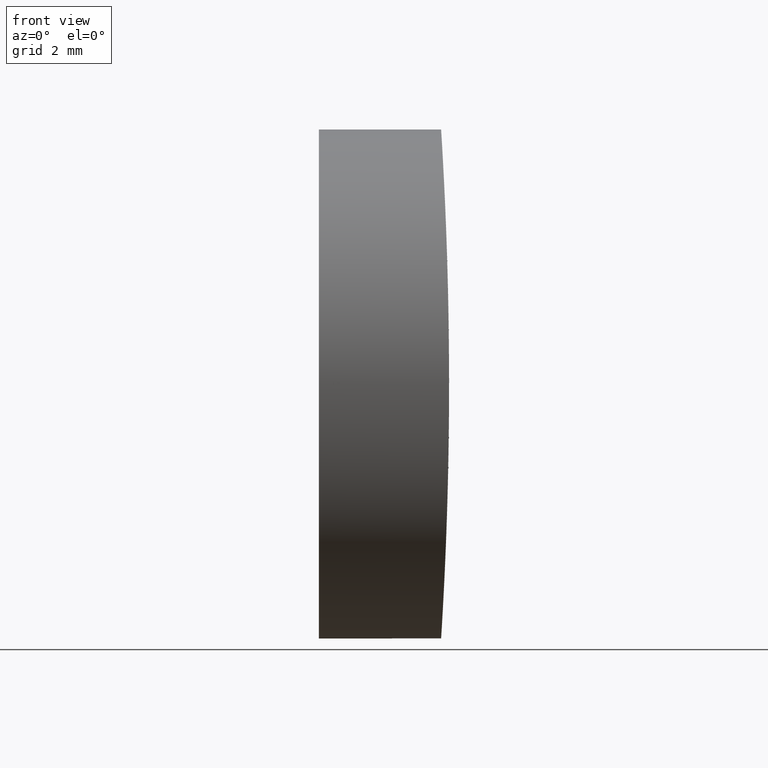
[diagram: clean part render]
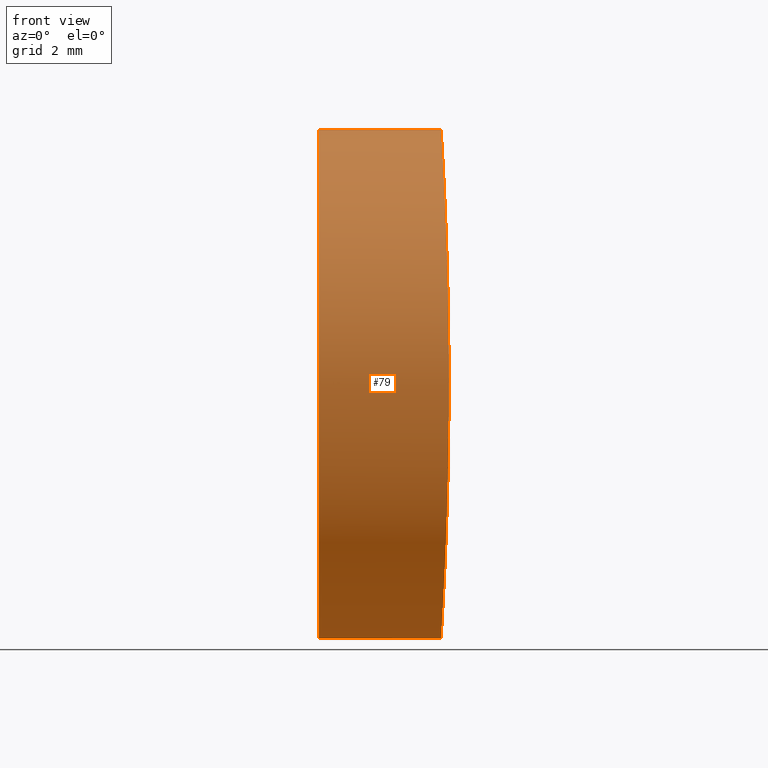
[diagram: same view with one face highlighted and labeled with its STEP entity id]
A machine part, front view. The second image highlights one B-rep face of the part: STEP entity #79.
In plain terms, the highlighted cylindrical surface (bore or boss wall) has radius 6.25 mm, axis along (-1, -0, -0).
Its self-contained STEP definition (entity closure, byte-faithful):
#3 = VERTEX_POINT ( 'NONE', #69 ) ;
#5 = AXIS2_PLACEMENT_3D ( 'NONE', #40, #200, #90 ) ;
#6 = CARTESIAN_POINT ( 'NONE',  ( 3.009858697525325866, 1.418287494287904904, 6.090355332292132218 ) ) ;
#7 = CARTESIAN_POINT ( 'NONE',  ( 3.157601807673755090, -5.614292337331865390, -2.776639082141049375 ) ) ;
#9 = CARTESIAN_POINT ( 'NONE',  ( 3.185702994570297264, -6.091607424913063618, 1.412894584686569921 ) ) ;
#13 = CARTESIAN_POINT ( 'NONE',  ( 3.002596704268560401, 0.8244478658250538050, -6.208828150817923053 ) ) ;
#14 = CARTESIAN_POINT ( 'NONE',  ( 3.072185422046392667, 3.813985078487059699, -4.968071734392931482 ) ) ;
#17 = ORIENTED_EDGE ( 'NONE', *, *, #206, .T. ) ;
#18 = CARTESIAN_POINT ( 'NONE',  ( 3.019990372963688774, 2.009039596468458644, 5.921853860175702700 ) ) ;
#21 = CARTESIAN_POINT ( 'NONE',  ( 3.002558205060031238, -0.8216375362494433565, 6.209458920321967668 ) ) ;
#24 = CARTESIAN_POINT ( 'NONE',  ( 3.182520515767396141, -6.039401681807962774, -1.621823219205289490 ) ) ;
#27 = CARTESIAN_POINT ( 'NONE',  ( 3.048332263727866032, -3.127513394992718077, -5.426822333617859151 ) ) ;
#30 = CARTESIAN_POINT ( 'NONE',  ( 3.192952293806416098, 6.209638386458053994, -0.8184807231927211379 ) ) ;
#31 = CARTESIAN_POINT ( 'NONE',  ( 3.110702828080006199, 4.713118881392727388, -4.125433287542163541 ) ) ;
#32 = CIRCLE ( 'NONE', #5, 6.250000000000000000 ) ;
#34 = CARTESIAN_POINT ( 'NONE',  ( 3.048442603455640665, 3.130763571301910186, 5.424722386913210848 ) ) ;
#37 = CARTESIAN_POINT ( 'NONE',  ( 3.038224859833053237, -2.770577197536851166, 5.606095063064469919 ) ) ;
#40 = CARTESIAN_POINT ( 'NONE',  ( 0.000000000000000000, 0.000000000000000000, 0.000000000000000000 ) ) ;
#41 = CARTESIAN_POINT ( 'NONE',  ( 3.192897618552867467, -6.208760120707971453, -0.8244661367677648123 ) ) ;
#42 = CARTESIAN_POINT ( 'NONE',  ( 3.185549724655416970, -6.089097899939888592, -1.423683049958889058 ) ) ;
#45 = CARTESIAN_POINT ( 'NONE',  ( 3.123390325607350526, 4.971329883666571803, -3.809748644509422633 ) ) ;
#47 = CARTESIAN_POINT ( 'NONE',  ( 3.084893838079882489, 4.129980598322125829, -4.709134703699227487 ) ) ;
#49 = CARTESIAN_POINT ( 'NONE',  ( 3.167250204464449936, 5.782750015767781804, 2.397155499010955371 ) ) ;
#53 = CARTESIAN_POINT ( 'NONE',  ( 3.085102559341577955, -4.134786269014060878, 4.704503955401047932 ) ) ;
#55 = CARTESIAN_POINT ( 'NONE',  ( 3.000000000000003109, -7.589415207398531038E-16, 6.250000000000000000 ) ) ;
#56 = CARTESIAN_POINT ( 'NONE',  ( 3.012875549330923608, -1.616576238784589226, -6.040783520056414169 ) ) ;
#57 = CARTESIAN_POINT ( 'NONE',  ( 3.110260118585228106, -4.703530497242502051, -4.135857835679606964 ) ) ;
#59 = CARTESIAN_POINT ( 'NONE',  ( 3.195517263820384812, 6.250218061136494363, -0.4043505106314933539 ) ) ;
#61 = CARTESIAN_POINT ( 'NONE',  ( 3.002477782206692591, -0.8111574474544952507, -6.210740287589626263 ) ) ;
#63 = CARTESIAN_POINT ( 'NONE',  ( 3.183159225609138332, 6.050180041691072930, -1.620136120186957518 ) ) ;
#65 = CARTESIAN_POINT ( 'NONE',  ( 10.00000000000000000, 0.000000000000000000, 0.000000000000000000 ) ) ;
#66 = CARTESIAN_POINT ( 'NONE',  ( 3.146712979900911922, 5.415754101155361155, 3.126329254301195348 ) ) ;
#67 = CARTESIAN_POINT ( 'NONE',  ( 3.072425068581617680, -3.820493756978063260, 4.963346702404590971 ) ) ;
#69 = CARTESIAN_POINT ( 'NONE',  ( 0.000000000000000000, 0.000000000000000000, -6.250000000000000000 ) ) ;
#72 = CARTESIAN_POINT ( 'NONE',  ( 3.157874577920606551, -5.619129849161190293, 2.766952316071027429 ) ) ;
#73 = CARTESIAN_POINT ( 'NONE',  ( 3.171471094300586380, -5.854141592832343477, 2.198536457818400791 ) ) ;
#78 = CARTESIAN_POINT ( 'NONE',  ( 3.000009176933943866, 0.4101630643429558520, -6.249853169047578483 ) ) ;
#79 = ADVANCED_FACE ( 'NONE', ( #179, #210 ), #183, .T. ) ;
#80 = CARTESIAN_POINT ( 'NONE',  ( 3.195489839898963069, 6.249780136166450006, 0.4110637381040332383 ) ) ;
#84 = CARTESIAN_POINT ( 'NONE',  ( 3.084972149725444979, 4.131637697944118948, 4.707251532213443390 ) ) ;
#88 = CARTESIAN_POINT ( 'NONE',  ( 3.000000000000003997, -0.4130129986808799281, 6.250000000000000000 ) ) ;
#90 = DIRECTION ( 'NONE',  ( 0.000000000000000000, 0.000000000000000000, -1.000000000000000000 ) ) ;
#91 = CARTESIAN_POINT ( 'NONE',  ( 3.195477696332365447, -6.249586218785299963, -0.4186395341117039592 ) ) ;
#92 = CARTESIAN_POINT ( 'NONE',  ( 3.146843220437108624, -5.422070521831245493, -3.135387223554390257 ) ) ;
#97 = CARTESIAN_POINT ( 'NONE',  ( 3.048883070490219005, 3.131599557696304270, -5.412727287028449297 ) ) ;
#98 = CARTESIAN_POINT ( 'NONE',  ( 3.054535783172174224, 3.306483722776874856, -5.307644969782787214 ) ) ;
#100 = CARTESIAN_POINT ( 'NONE',  ( 3.037705624257132531, 2.771820113852953238, 5.616700411474631949 ) ) ;
#102 = AXIS2_PLACEMENT_3D ( 'NONE', #65, #209, #129 ) ;
#104 = CARTESIAN_POINT ( 'NONE',  ( 3.110616076270977803, -4.711068605484761029, 4.127305119715185100 ) ) ;
#105 = CARTESIAN_POINT ( 'NONE',  ( 3.000000000000002665, 0.000000000000000000, 6.250000000000000000 ) ) ;
#107 = CARTESIAN_POINT ( 'NONE',  ( 3.195529132169534936, -6.250407583646153675, 0.4061920775335944311 ) ) ;
#108 = CARTESIAN_POINT ( 'NONE',  ( 3.019976483656477750, -2.008300854151321424, -5.922086790245747245 ) ) ;
#112 = CARTESIAN_POINT ( 'NONE',  ( 3.175385121019949075, 5.920288358021984720, 2.013577557086208003 ) ) ;
#113 = CARTESIAN_POINT ( 'NONE',  ( 3.192977688607564257, 6.210053820591149965, 0.8166467522210335561 ) ) ;
#114 = EDGE_LOOP ( 'NONE', ( #181 ) ) ;
#115 = CARTESIAN_POINT ( 'NONE',  ( 3.123155384498604192, 4.966713254986705017, 3.816166089297897024 ) ) ;
#118 = CARTESIAN_POINT ( 'NONE',  ( 3.012470700138666135, -1.630165109046267435, 6.047729329375473917 ) ) ;
#120 = CARTESIAN_POINT ( 'NONE',  ( 3.048879167070673191, -3.131458353861848565, 5.412796730125360334 ) ) ;
#121 = CARTESIAN_POINT ( 'NONE',  ( 3.002556748968680633, 0.8191041923873633168, 6.209463606636563604 ) ) ;
#122 = CARTESIAN_POINT ( 'NONE',  ( 3.024031255419249664, -2.200243366642840037, -5.853448175713322321 ) ) ;
#123 = CARTESIAN_POINT ( 'NONE',  ( 3.123204051354562250, -4.967635113443827244, -3.814721898778393960 ) ) ;
#125 = CARTESIAN_POINT ( 'NONE',  ( 3.033180606006396829, 2.582803534919205113, -5.695052036010793017 ) ) ;
#127 = CARTESIAN_POINT ( 'NONE',  ( 2.999990873400002478, -0.4056760192121173780, -6.250146025609441658 ) ) ;
#129 = DIRECTION ( 'NONE',  ( 0.000000000000000000, 0.000000000000000000, 1.000000000000000000 ) ) ;
#130 = CARTESIAN_POINT ( 'NONE',  ( 3.110472781707418921, 4.708032762651352954, 4.130747457833783720 ) ) ;
#133 = VERTEX_POINT ( 'NONE', #105 ) ;
#136 = CARTESIAN_POINT ( 'NONE',  ( 3.175361640847438771, -5.919895246018202606, -2.014825924180385197 ) ) ;
#137 = CARTESIAN_POINT ( 'NONE',  ( 3.147134330756410581, -5.427391413255242547, 3.126099756510475114 ) ) ;
#142 = CARTESIAN_POINT ( 'NONE',  ( 3.175986793620091397, 5.932196087536149243, -2.009780990279119273 ) ) ;
#143 = CARTESIAN_POINT ( 'NONE',  ( 3.162408681150959300, 5.697499487722711642, -2.577385710340240887 ) ) ;
#147 = CARTESIAN_POINT ( 'NONE',  ( 3.157356754716674541, 5.608553243535224553, 2.765584405839642379 ) ) ;
#150 = CARTESIAN_POINT ( 'NONE',  ( 3.054617897672685878, -3.309032709890794344, 5.306121303147672386 ) ) ;
#152 = CARTESIAN_POINT ( 'NONE',  ( 3.033274950661144942, -2.586353779260940566, 5.693390613273725087 ) ) ;
#156 = CARTESIAN_POINT ( 'NONE',  ( 3.175593483509135062, -5.923798432930809987, 2.003276951679926476 ) ) ;
#157 = CARTESIAN_POINT ( 'NONE',  ( 3.084769402384562209, -4.126745368995614172, -4.711527547931345872 ) ) ;
#161 = CARTESIAN_POINT ( 'NONE',  ( 3.012407481173930535, 1.625337645482206828, -6.048763413130895827 ) ) ;
#162 = CARTESIAN_POINT ( 'NONE',  ( 3.146701470251326516, 5.415547755021530740, -3.126733327975792509 ) ) ;
#164 = CARTESIAN_POINT ( 'NONE',  ( 3.012870842917219516, 1.616344037418439905, 6.040862951115337331 ) ) ;
#168 = CARTESIAN_POINT ( 'NONE',  ( 3.019748113473696982, -2.022524302248928763, 5.927696486330539472 ) ) ;
#169 = B_SPLINE_CURVE_WITH_KNOTS ( 'NONE', 3,
 ( #55, #172, #121, #6, #164, #18, #211, #100, #34, #182, #84, #130, #115, #198, #66, #147, #49, #112, #208, #207, #113, #80, #59, #30, #63, #142, #143, #196, #162, #178, #45, #31, #47, #14, #98, #97, #177, #125, #193, #161, #13, #78, #127, #61, #173, #56, #108, #122, #174, #27, #188, #157, #57, #123, #92, #7, #171, #136, #24, #42, #41, #91, #107, #189, #9, #201, #156, #73, #72, #137, #203, #104, #53, #67, #150, #120, #37, #152, #168, #118, #21, #88, #186 ),
 .UNSPECIFIED., .T., .F.,
 ( 4, 2, 2, 2, 2, 2, 2, 2, 1, 2, 2, 2, 2, 2, 2, 2, 2, 2, 2, 2, 2, 2, 2, 2, 2, 2, 2, 2, 2, 2, 2, 2, 2, 2, 2, 2, 2, 2, 2, 2, 2, 4 ),
 ( 0.000000000000000000, 0.001221429554478765641, 0.001832144331718148136, 0.002442859108957531281, 0.003664288663436298873, 0.004885718217915066899, 0.006107147772393836660, 0.006717862549633221540, 0.007328577326872606421, 0.007939292104111992168, 0.008550006881351376181, 0.009771436435830145942, 0.01099286599030891744, 0.01221429554478768720, 0.01282501032202707121, 0.01343572509926645696, 0.01465715465374522845, 0.01587858420822400168, 0.01648929898546338743, 0.01710001376270276971, 0.01832144331718154467, 0.01954287287166031617, 0.02076430242613908420, 0.02137501720337846994, 0.02198573198061785916, 0.02320716153509663066, 0.02442859108957539868, 0.02565002064405417018, 0.02687145019853293820, 0.02748216497577232395, 0.02809287975301171317, 0.02931430930749048466, 0.03053573886196925269, 0.03114645363920863844, 0.03175716841644802418, 0.03297859797092679568, 0.03420002752540556717, 0.03542145707988433173, 0.03603217185712371401, 0.03664288663436309629, 0.03786431618884186778, 0.03908574574332063928 ),
 .UNSPECIFIED. ) ;
#170 = EDGE_CURVE ( 'NONE', #3, #3, #32, .T. ) ;
#171 = CARTESIAN_POINT ( 'NONE',  ( 3.171222639725260528, -5.849905944860350537, -2.209745731223762721 ) ) ;
#172 = CARTESIAN_POINT ( 'NONE',  ( 3.000000000000002220, 0.4130129986808784293, 6.249999999999999112 ) ) ;
#173 = CARTESIAN_POINT ( 'NONE',  ( 3.009817699102181443, -1.415644714919118696, -6.091029705413856910 ) ) ;
#174 = CARTESIAN_POINT ( 'NONE',  ( 3.037511595372476059, -2.764507390852540158, -5.620116062750960317 ) ) ;
#177 = CARTESIAN_POINT ( 'NONE',  ( 3.038212295267126883, 2.770142617306295740, -5.606321641976088621 ) ) ;
#178 = CARTESIAN_POINT ( 'NONE',  ( 3.141045071244617848, 5.310549948226285011, -3.301819291547954727 ) ) ;
#179 = FACE_OUTER_BOUND ( 'NONE', #197, .T. ) ;
#181 = ORIENTED_EDGE ( 'NONE', *, *, #170, .T. ) ;
#182 = CARTESIAN_POINT ( 'NONE',  ( 3.072031926661761059, 3.810079168204551614, 4.971175942016353488 ) ) ;
#183 = CYLINDRICAL_SURFACE ( 'NONE', #102, 6.250000000000000000 ) ;
#186 = CARTESIAN_POINT ( 'NONE',  ( 3.000000000000003109, -7.589415207398531038E-16, 6.250000000000000000 ) ) ;
#188 = CARTESIAN_POINT ( 'NONE',  ( 3.072091208760002523, -3.811858852006881460, -4.970057622290633859 ) ) ;
#189 = CARTESIAN_POINT ( 'NONE',  ( 3.192985722490724321, -6.210166812462921904, 0.8137178062169454495 ) ) ;
#193 = CARTESIAN_POINT ( 'NONE',  ( 3.019584210178823724, 2.014912876473708092, -5.930480020341305725 ) ) ;
#196 = CARTESIAN_POINT ( 'NONE',  ( 3.157381499565041327, 5.609003096329201909, -2.764724770490316175 ) ) ;
#197 = EDGE_LOOP ( 'NONE', ( #17 ) ) ;
#198 = CARTESIAN_POINT ( 'NONE',  ( 3.140982030273469672, 5.309389121961449298, 3.303801325169148040 ) ) ;
#200 = DIRECTION ( 'NONE',  ( 1.000000000000000000, 0.000000000000000000, 0.000000000000000000 ) ) ;
#201 = CARTESIAN_POINT ( 'NONE',  ( 3.182697208297407432, -6.042316412865126551, 1.610875161502660413 ) ) ;
#203 = CARTESIAN_POINT ( 'NONE',  ( 3.123560242375387208, -4.974750371050109088, 3.805382501939636786 ) ) ;
#206 = EDGE_CURVE ( 'NONE', #133, #133, #169, .T. ) ;
#207 = CARTESIAN_POINT ( 'NONE',  ( 3.185581216349111067, 6.089615805805610016, 1.421750481209876016 ) ) ;
#208 = CARTESIAN_POINT ( 'NONE',  ( 3.182510810286037994, 6.039238514924912593, 1.622315314721352930 ) ) ;
#209 = DIRECTION ( 'NONE',  ( -1.000000000000000000, -0.000000000000000000, -0.000000000000000000 ) ) ;
#210 = FACE_OUTER_BOUND ( 'NONE', #114, .T. ) ;
#211 = CARTESIAN_POINT ( 'NONE',  ( 3.024116081059015748, 2.204190447306032308, 5.852007949068396719 ) ) ;